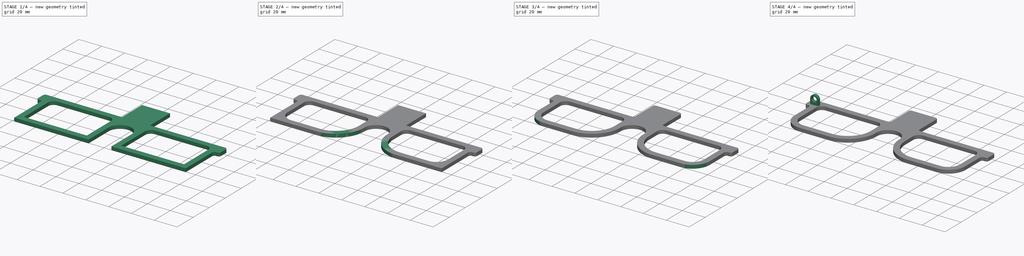
[diagram: build sequence overview — one tinted view per stage of 4, left to right]
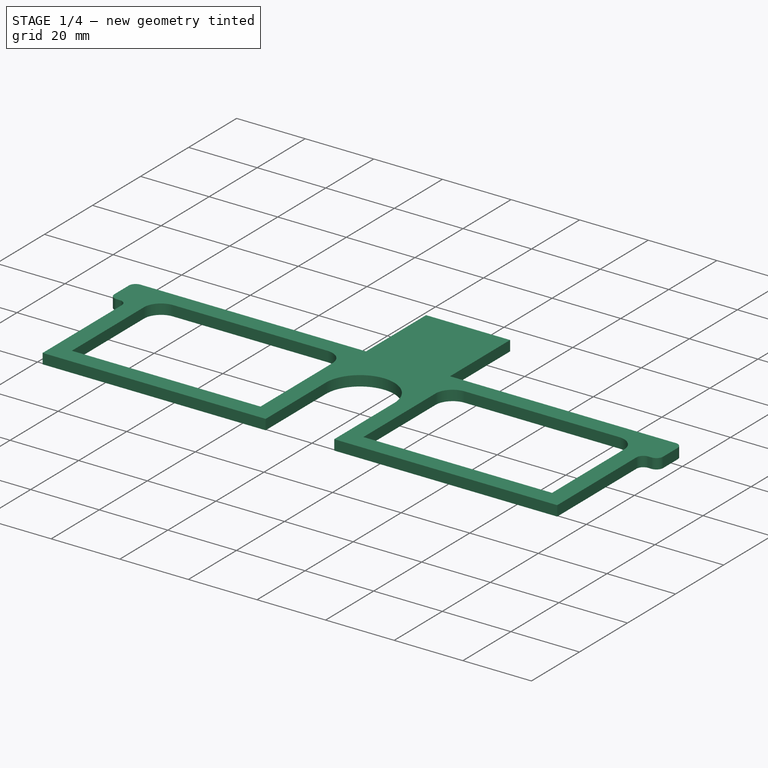
[diagram: stage 1 of 4 — iso view after this stage's code; geometry added in this stage tinted green]
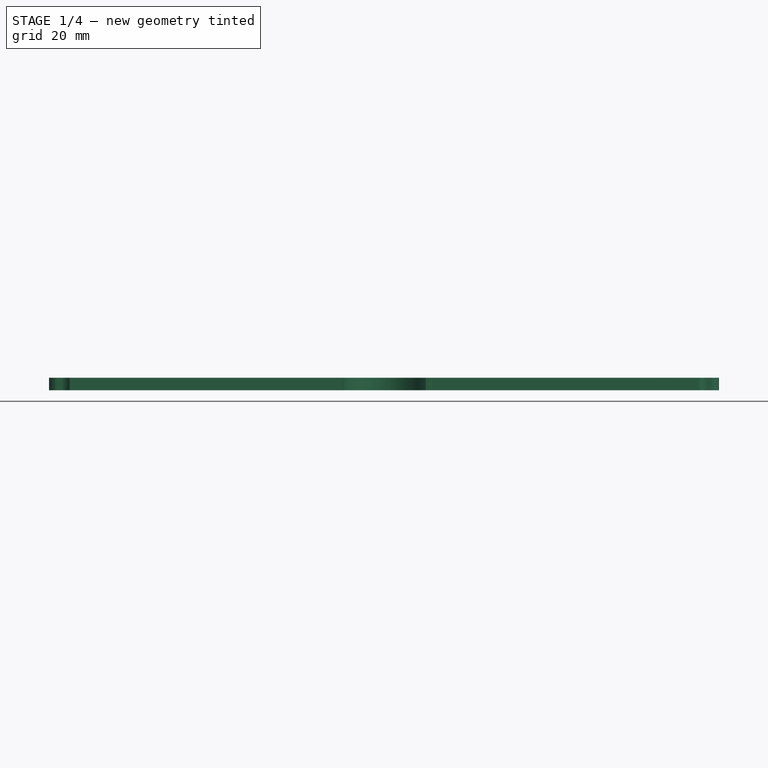
[diagram: stage 1 of 4 — front view after this stage's code; geometry added in this stage tinted green]
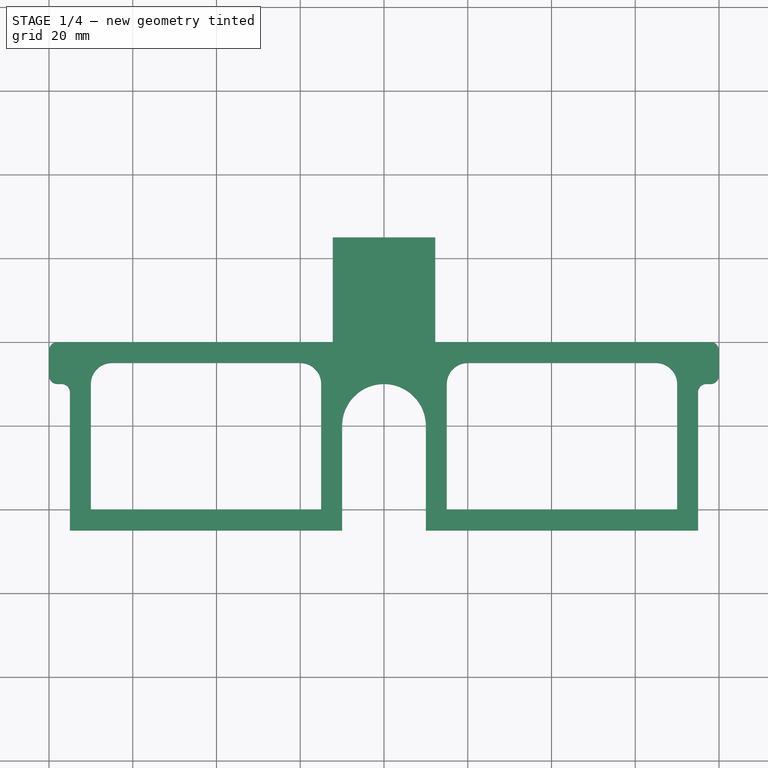
[diagram: stage 1 of 4 — top view after this stage's code; geometry added in this stage tinted green]
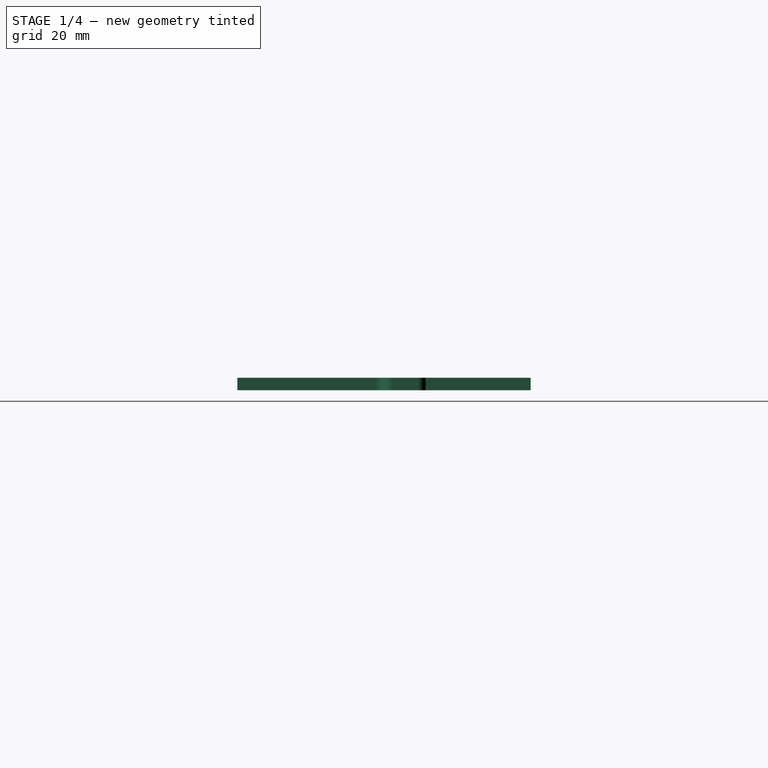
[diagram: stage 1 of 4 — right view after this stage's code; geometry added in this stage tinted green]
FCSTD DOCUMENT  (FreeCAD 0.19R)
Label: base
License: All rights reserved
LicenseURL: http://en.wikipedia.org/wiki/All_rights_reserved
objects: PartDesign::Fillet×8, Sketcher::SketchObject×3, PartDesign::Pad×2, PartDesign::Pocket×1, PartDesign::Body×1
note: 26 computed .brp shape members not serialized (recipe doc carries the construction recipe); baked Part::Feature solids carry a one-line shape summary decoded from their .brp

FEATURE [Sketcher::SketchObject] Sketch
  FullyConstrained = false
  MapMode = 5
  Support = -> [XY_Plane]
  sketch-geometry (30):
    g0: GeomPoint X=0 Y=2.4e-15 Z=0
    g1: ArcOfCircle CenterX=0 CenterY=2.4e-15 CenterZ=0 NormalX=0 NormalY=0 NormalZ=1 AngleXU=0 Radius=10 StartAngle=0 EndAngle=3.14159
    g2: LineSegment StartX=-75 StartY=20 StartZ=0 EndX=-12.25 EndY=20 EndZ=0
    g3: LineSegment StartX=12.25 StartY=20 StartZ=0 EndX=75 EndY=20 EndZ=0
    g4: LineSegment StartX=-12.25 StartY=20 StartZ=0 EndX=-12.25 EndY=45 EndZ=0
    g5: LineSegment StartX=12.25 StartY=20 StartZ=0 EndX=12.25 EndY=45 EndZ=0
    g6: LineSegment StartX=-12.25 StartY=45 StartZ=0 EndX=12.25 EndY=45 EndZ=0
    g7: GeomPoint X=-52.4596 Y=45 Z=0
    g8: GeomPoint X=-10 Y=-25 Z=0
    g9: LineSegment StartX=-70 StartY=15 StartZ=0 EndX=-15 EndY=15 EndZ=0
    g10: LineSegment StartX=-75 StartY=-25 StartZ=0 EndX=-10 EndY=-25 EndZ=0
    g11: LineSegment StartX=10 StartY=-25 StartZ=0 EndX=75 EndY=-25 EndZ=0
    g12: LineSegment StartX=-10 StartY=2.4e-15 StartZ=0 EndX=-10 EndY=-25 EndZ=0
    g13: LineSegment StartX=10 StartY=2.4e-15 StartZ=0 EndX=10 EndY=-25 EndZ=0
    g14: LineSegment StartX=-70 StartY=15 StartZ=0 EndX=-70 EndY=-20 EndZ=0
    g15: LineSegment StartX=-70 StartY=-20 StartZ=0 EndX=-15 EndY=-20 EndZ=0
    g16: LineSegment StartX=-15 StartY=-20 StartZ=0 EndX=-15 EndY=15 EndZ=0
    g17: LineSegment StartX=15 StartY=15 StartZ=0 EndX=70 EndY=15 EndZ=0
    g18: LineSegment StartX=70 StartY=15 StartZ=0 EndX=70 EndY=-20 EndZ=0
    g19: LineSegment StartX=70 StartY=-20 StartZ=0 EndX=15 EndY=-20 EndZ=0
    g20: LineSegment StartX=15 StartY=-20 StartZ=0 EndX=15 EndY=15 EndZ=0
    g21: LineSegment StartX=-75.0012 StartY=20 StartZ=0 EndX=-75 EndY=20 EndZ=0
    g22: LineSegment StartX=-75 StartY=-25 StartZ=0 EndX=-75 EndY=10 EndZ=0
    g23: LineSegment StartX=-75 StartY=10 StartZ=0 EndX=-80 EndY=10 EndZ=0
    g24: LineSegment StartX=-80 StartY=10 StartZ=0 EndX=-80 EndY=20 EndZ=0
    g25: LineSegment StartX=-80 StartY=20 StartZ=0 EndX=-75 EndY=20 EndZ=0
    g26: LineSegment StartX=75 StartY=-25 StartZ=0 EndX=75 EndY=10 EndZ=0
    g27: LineSegment StartX=80 StartY=10 StartZ=0 EndX=75 EndY=10 EndZ=0
    g28: LineSegment StartX=75 StartY=20 StartZ=0 EndX=80 EndY=20 EndZ=0
    g29: LineSegment StartX=80 StartY=10 StartZ=0 EndX=80 EndY=20 EndZ=0
  constraints (83):
    c: Coincident(g1,g0)
    c: Horizontal(g2)
    c: Horizontal(g3)
    c: Equal(g2,g3) = 55
    c: Vertical(g4)
    c: Coincident(g2,g4)
    c: DistanceY(g4,g4) = 25
    c: Vertical(g5)
    c: Equal(g4,g5) = 25
    c: Coincident(g3,g5)
    c: Coincident(g6,g4)
    c: Coincident(g6,g5)
    c: DistanceX(g6,g6) = 24.5
    c: PointOnObject(g7,g6)
    c: Coincident(g1,g-1)
    c: Horizontal(g9)
    c: Horizontal(g10)
    c: Horizontal(g6)
    c: Radius(g1) = 10
    c: Horizontal(g1,g1)
    c: Horizontal(g1,g1)
    c: Horizontal(g11)
    c: Equal(g10,g11) = 40
    c: Coincident(g12,g1)
    c: Vertical(g12)
    c: DistanceY(g12,g12) = 25
    c: Coincident(g8,g12)
    c: Vertical(g13)
    c: Coincident(g1,g13)
    c: Coincident(g11,g13)
    c: Coincident(g14,g9)
    c: Vertical(g14)
    c: Coincident(g15,g14)
    c: Horizontal(g15)
    c: Coincident(g16,g15)
    c: Coincident(g16,g9)
    c: Vertical(g16)
    c: Coincident(g17,g18)
    c: Coincident(g18,g19)
    c: Coincident(g19,g20)
    c: Coincident(g20,g17)
    c: Horizontal(g17)
    c: Horizontal(g19)
    c: Vertical(g18)
    c: Vertical(g20)
    c: DistanceY(g17,g3) = 5
    c: DistanceX(g17,g3) = 5
    c: DistanceX(g11,g19) = 5
    c: DistanceY(g11,g19) = 5
    c: DistanceX(g15,g10) = 5
    c: DistanceY(g10,g15) = 5
    c: Coincident(g8,g10)
    c: Horizontal(g21)
    c: Coincident(g2,g21)
    c: DistanceX(g10,g10) = 65
    c: Coincident(g22,g10)
    c: Vertical(g22)
    c: Coincident(g23,g22)
    c: Horizontal(g23)
    c: Coincident(g24,g23)
    c: Vertical(g24)
    c: Coincident(g25,g24)
    c: Coincident(g25,g2)
    c: Horizontal(g25)
    c: DistanceY(g24,g24) = 10
    c: DistanceX(g23,g23) = 5
    c: DistanceY(g9,g2) = 5
    c: DistanceX(g2,g9) = 5
    c: DistanceX(g10,g14) = 5
    c: DistanceY(g10,g2) = 45
    c: Equal(g19,g15)
    c: Equal(g12,g13)
    c: Vertical(g26)
    c: Horizontal(g27)
    c: Horizontal(g28)
    c: Equal(g23,g27) = 5
    c: Vertical(g29)
    c: Equal(g24,g29) = 10
    c: Coincident(g28,g29)
    c: Coincident(g27,g29)
    c: Coincident(g26,g27)
    c: Coincident(g3,g28)
    c: Coincident(g11,g26)
FEATURE [PartDesign::Pad] Pad
  Direction = (1,1,1)
  Length = 3
  Length2 = 100
  Profile = -> Sketch
  Type = 0
FEATURE [PartDesign::Fillet] Fillet
  Base = -> Pad [Edge13,Edge17,Edge47,Edge44,Edge20,Edge41]
  BaseFeature = -> Pad
  Radius = 2
  SupportTransform = false
FEATURE [PartDesign::Fillet] Fillet001
  Base = -> Fillet [Edge93,Edge89,Edge94,Edge90]
  BaseFeature = -> Fillet
  Radius = 5
  SupportTransform = false
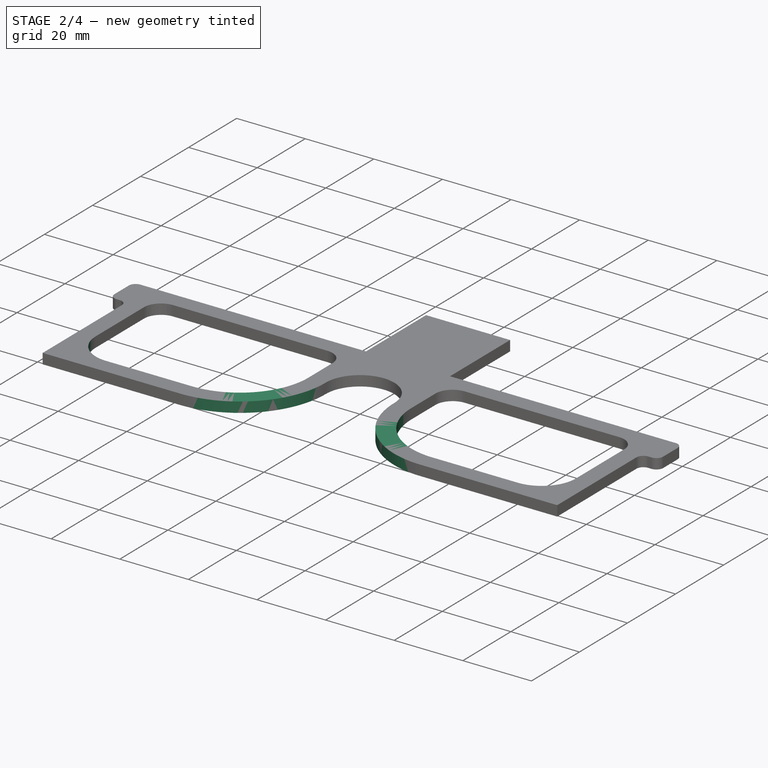
[diagram: stage 2 of 4 — iso view after this stage's code; geometry added in this stage tinted green]
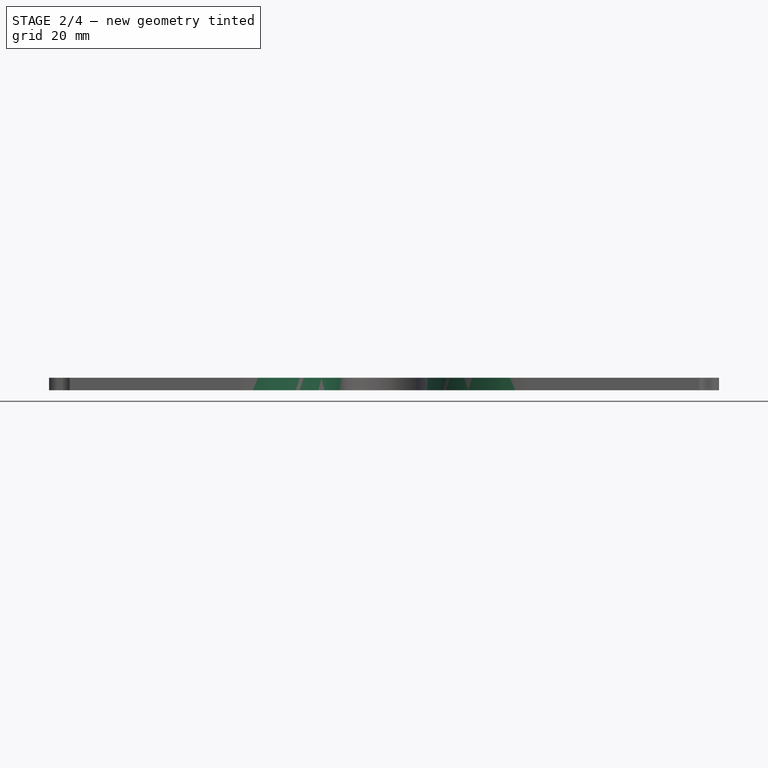
[diagram: stage 2 of 4 — front view after this stage's code; geometry added in this stage tinted green]
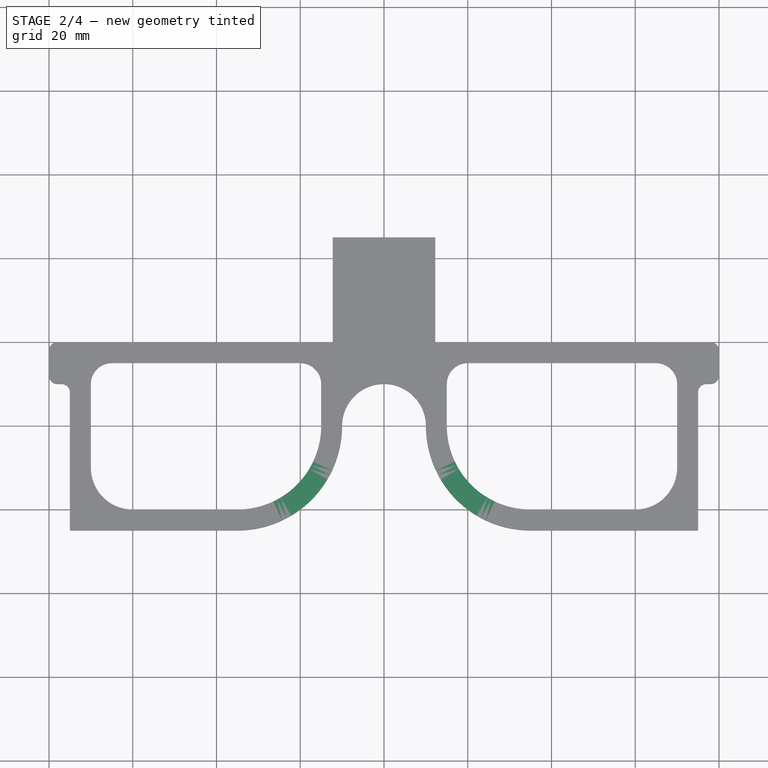
[diagram: stage 2 of 4 — top view after this stage's code; geometry added in this stage tinted green]
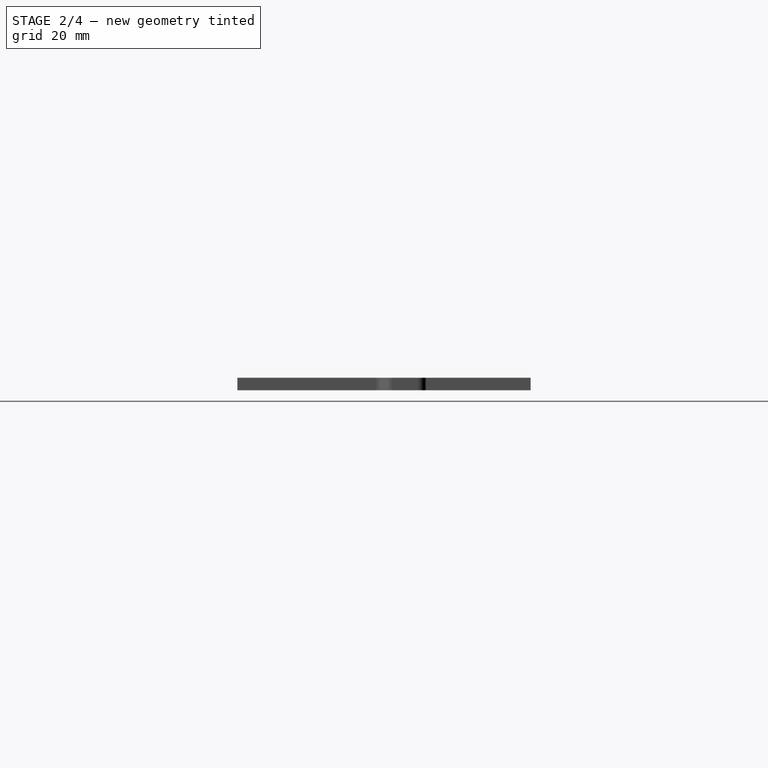
[diagram: stage 2 of 4 — right view after this stage's code; geometry added in this stage tinted green]
FEATURE [PartDesign::Fillet] Fillet002
  Base = -> Fillet001 [Edge106,Edge44]
  BaseFeature = -> Fillet001
  Radius = 20
  SupportTransform = false
FEATURE [PartDesign::Fillet] Fillet003
  Base = -> Fillet002 [Edge80,Edge92]
  BaseFeature = -> Fillet002
  Radius = 24.99
  SupportTransform = false
FEATURE [PartDesign::Fillet] Fillet004
  Base = -> Fillet003 [Edge114,Edge100]
  BaseFeature = -> Fillet003
  Radius = 10
  SupportTransform = false
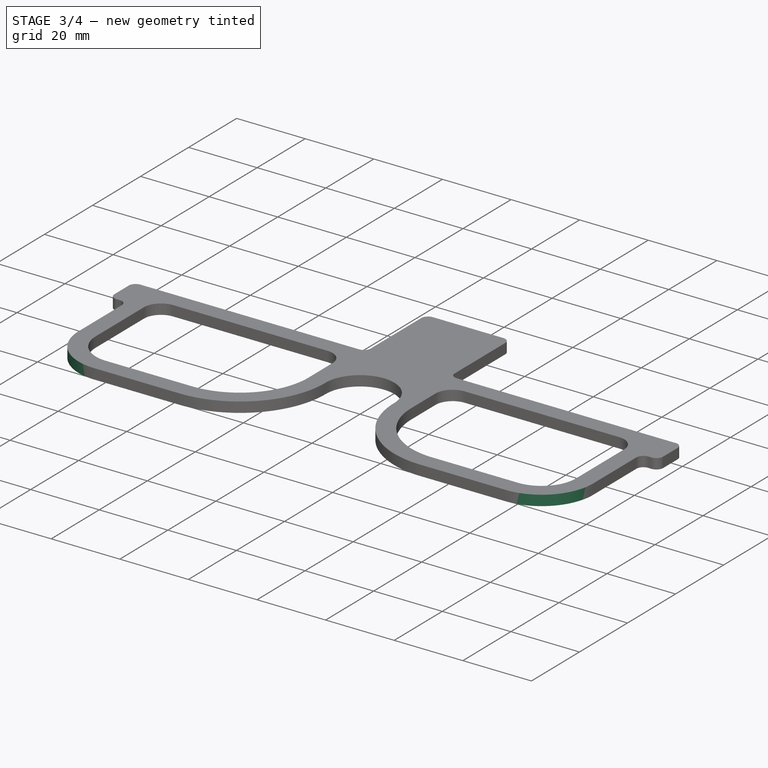
[diagram: stage 3 of 4 — iso view after this stage's code; geometry added in this stage tinted green]
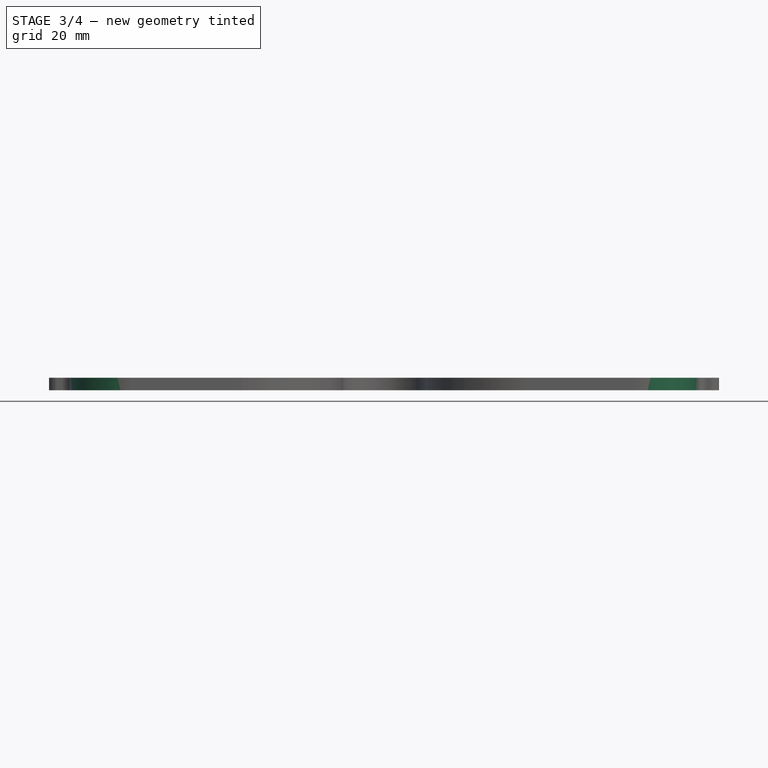
[diagram: stage 3 of 4 — front view after this stage's code; geometry added in this stage tinted green]
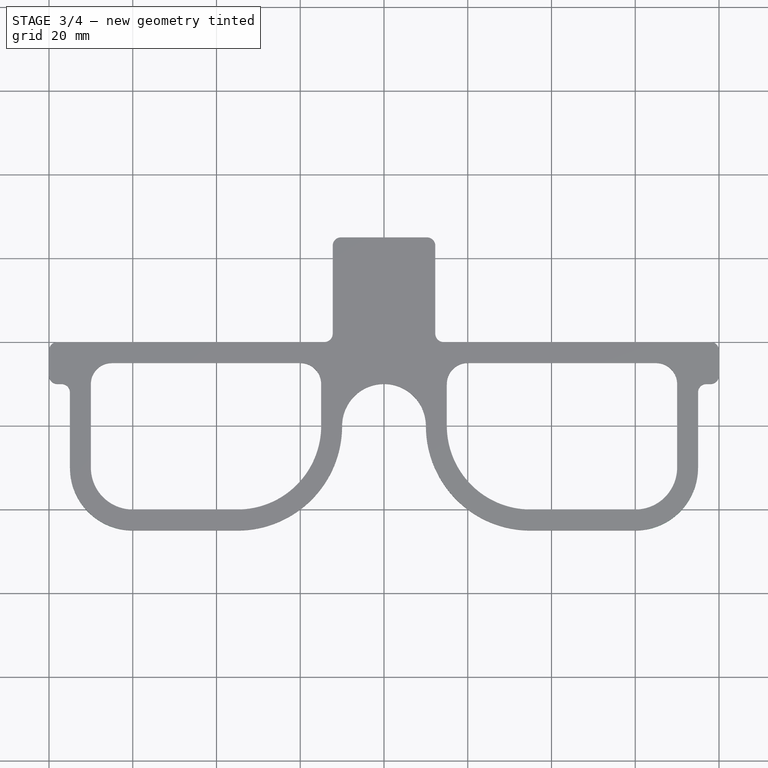
[diagram: stage 3 of 4 — top view after this stage's code; geometry added in this stage tinted green]
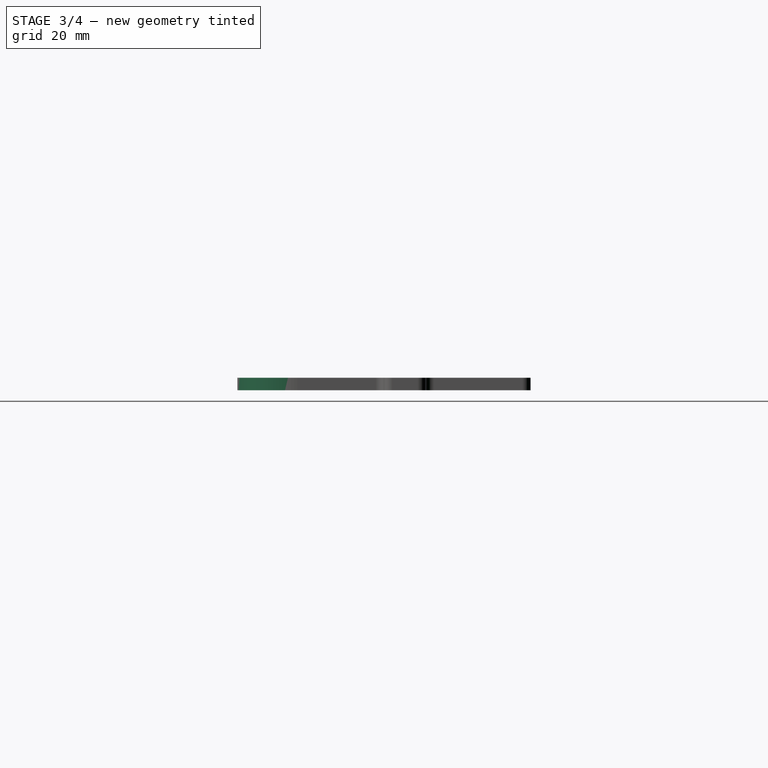
[diagram: stage 3 of 4 — right view after this stage's code; geometry added in this stage tinted green]
FEATURE [PartDesign::Fillet] Fillet005
  Base = -> Fillet004 [Edge82,Edge60]
  BaseFeature = -> Fillet004
  Radius = 15
  SupportTransform = false
FEATURE [PartDesign::Fillet] Fillet006
  Base = -> Fillet005 [Edge92,Edge80,Edge84,Edge88]
  BaseFeature = -> Fillet005
  Radius = 2
  SupportTransform = false
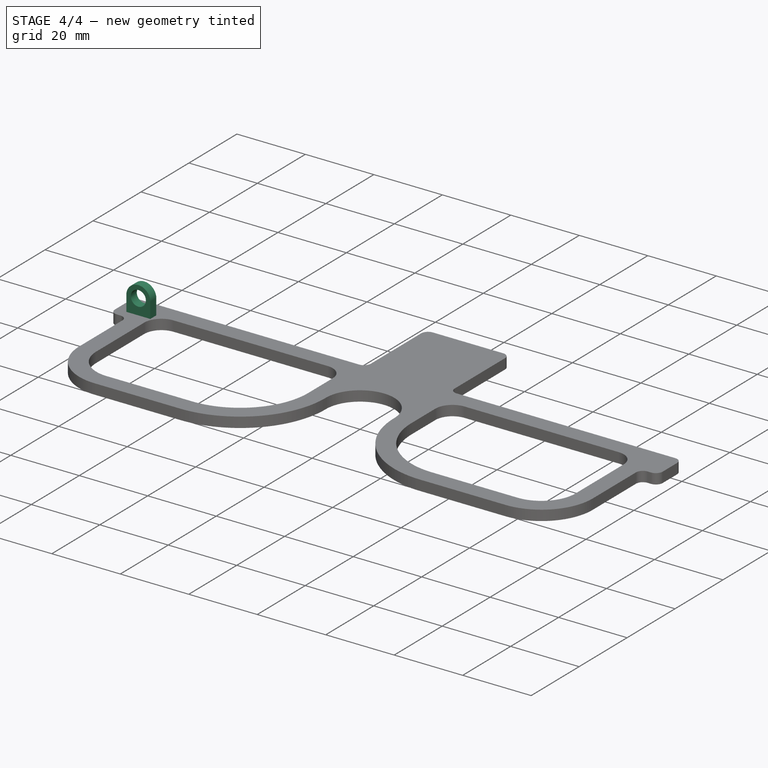
[diagram: stage 4 of 4 — iso view after this stage's code; geometry added in this stage tinted green]
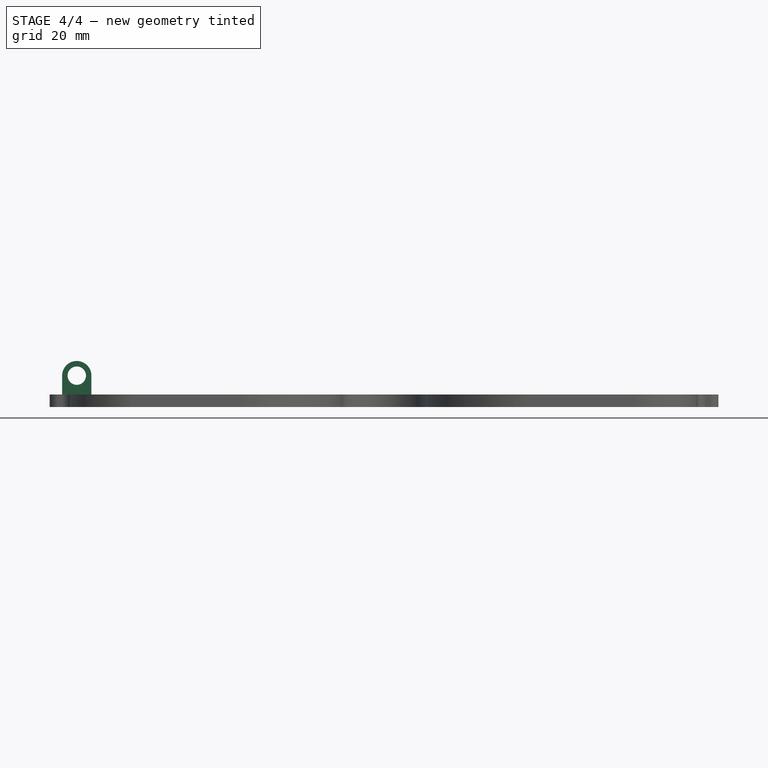
[diagram: stage 4 of 4 — front view after this stage's code; geometry added in this stage tinted green]
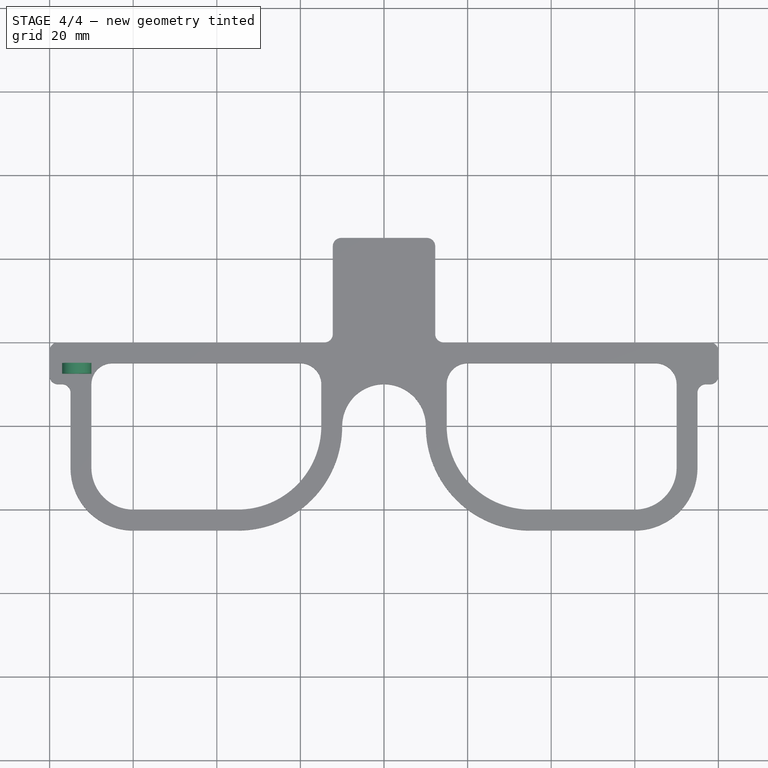
[diagram: stage 4 of 4 — top view after this stage's code; geometry added in this stage tinted green]
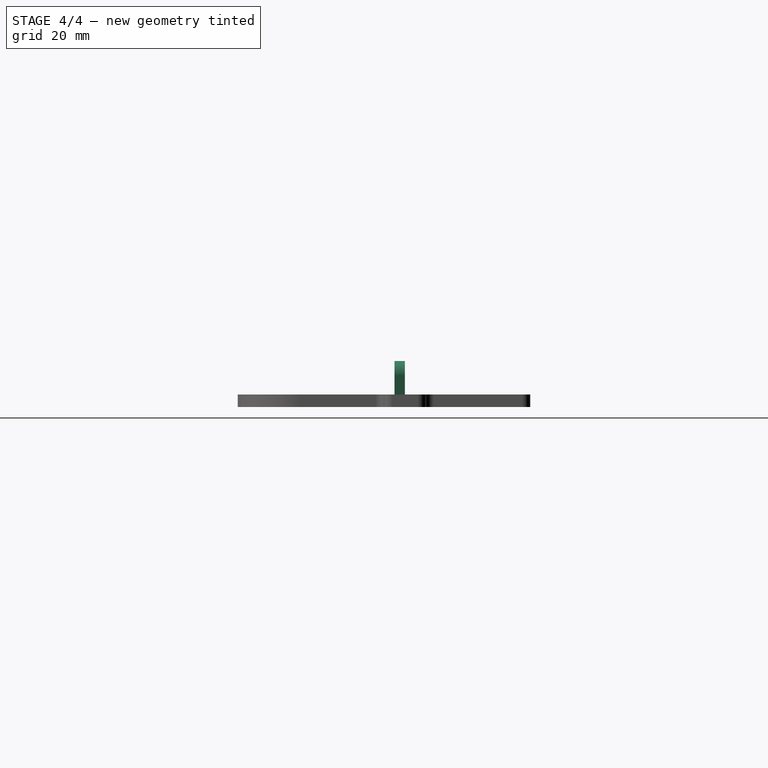
[diagram: stage 4 of 4 — right view after this stage's code; geometry added in this stage tinted green]
FEATURE [Sketcher::SketchObject] Sketch002
  ExternalGeometry = -> [Fillet006]
  FullyConstrained = true
  MapMode = 5
  Placement = pos=(0,0,3) rot=(0,0,1;0rad)
  Support = -> [Fillet006]
  sketch-geometry (5):
    g0: GeomPoint X=-77.0012 Y=20 Z=0
    g1: LineSegment StartX=-77.0012 StartY=15 StartZ=0 EndX=-70.0012 EndY=15 EndZ=0
    g2: LineSegment StartX=-70.0012 StartY=15 StartZ=0 EndX=-70.0012 EndY=12.5 EndZ=0
    g3: LineSegment StartX=-70.0012 StartY=12.5 StartZ=0 EndX=-77.0012 EndY=12.5 EndZ=0
    g4: LineSegment StartX=-77.0012 StartY=12.5 StartZ=0 EndX=-77.0012 EndY=15 EndZ=0
  constraints (14):
    c: DistanceX(g0,g-3) = 2
    c: Horizontal(g0,g-3)
    c: Coincident(g1,g2)
    c: Coincident(g2,g3)
    c: Coincident(g3,g4)
    c: Coincident(g4,g1)
    c: Horizontal(g1)
    c: Horizontal(g3)
    c: Vertical(g2)
    c: Vertical(g4)
    c: DistanceY(g4,g4) = 2.5
    c: Vertical(g0,g1)
    c: DistanceX(g1,g1) = 7
    c: DistanceY(g1,g0) = 5
FEATURE [PartDesign::Pad] Pad001
  BaseFeature = -> Fillet006
  Direction = (1,1,1)
  Length = 8
  Length2 = 100
  Profile = -> Sketch002
  Type = 0
FEATURE [Sketcher::SketchObject] Sketch003
  ExternalGeometry = -> [Pad001]
  FullyConstrained = true
  MapMode = 5
  Placement = pos=(0,15,0) rot=(0,0.707107,0.707107;3.14159rad)
  Support = -> [Pad001]
  sketch-geometry (1):
    g0: Circle CenterX=73.5012 CenterY=7.5 CenterZ=0 NormalX=0 NormalY=0 NormalZ=1 AngleXU=0 Radius=2.2
  constraints (3):
    c: Diameter(g0) = 4.4
    c: DistanceX(g-3,g0) = 3.5
    c: DistanceY(g0,g-3) = 3.5
FEATURE [PartDesign::Pocket] Pocket
  BaseFeature = -> Pad001
  Length = 2.5
  Length2 = 100
  Profile = -> Sketch003
  Type = 0
FEATURE [PartDesign::Fillet] Fillet007
  Base = -> Pocket [Edge151,Edge156]
  BaseFeature = -> Pocket
  Radius = 3.49
  SupportTransform = false
FEATURE [PartDesign::Body] Body
  Group = -> [Sketch,Pad,Fillet,Fillet001,Fillet002,Fillet003,Fillet004,Fillet005,Fillet006,Sketch002,Pad001,Sketch003,Pocket,Fillet007]
  Origin = -> Origin
  Tip = -> Fillet007
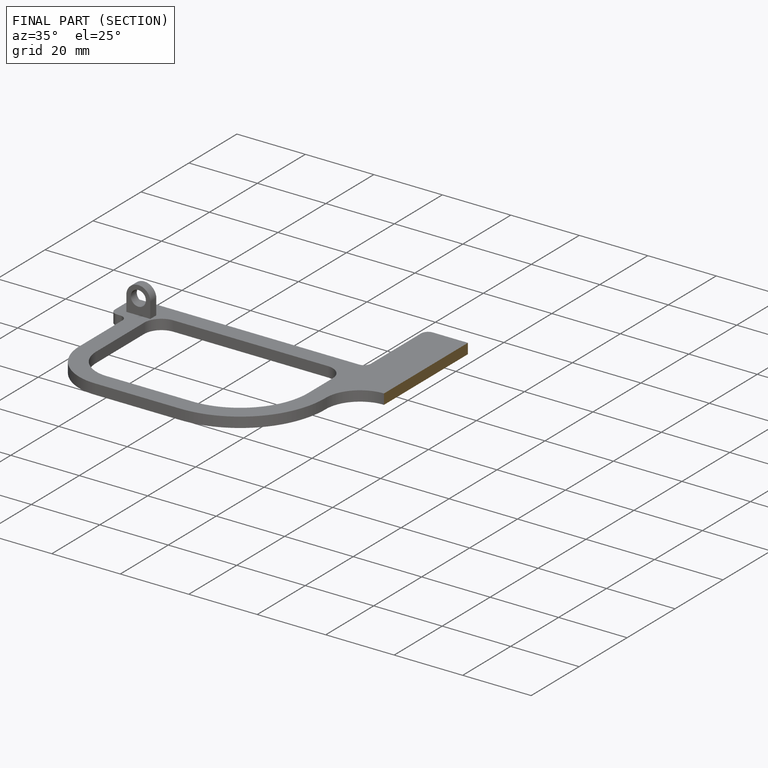
[diagram: finished part — half-section view (interior)]
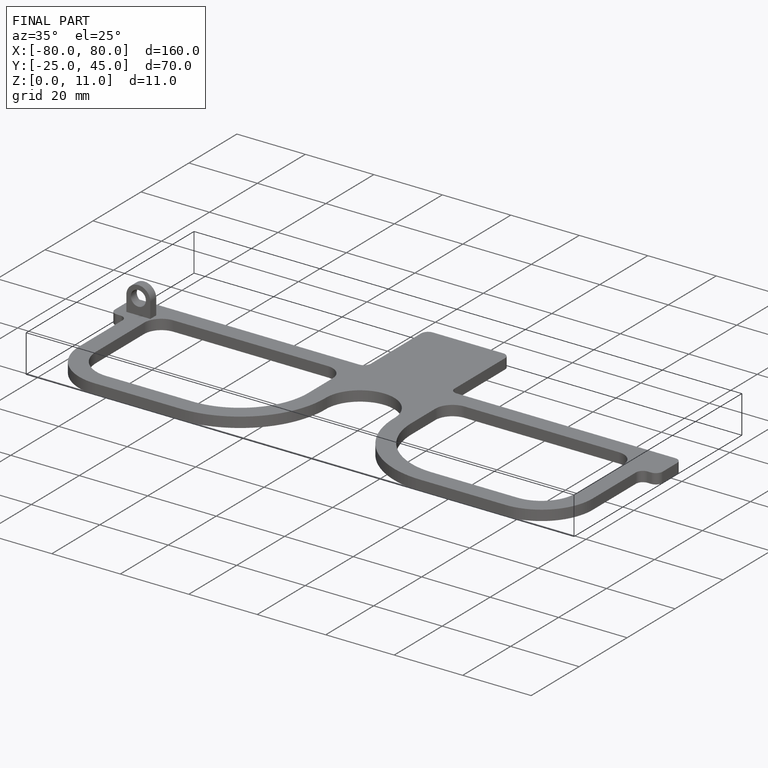
[diagram: finished part — iso view with bounding-box wireframe]
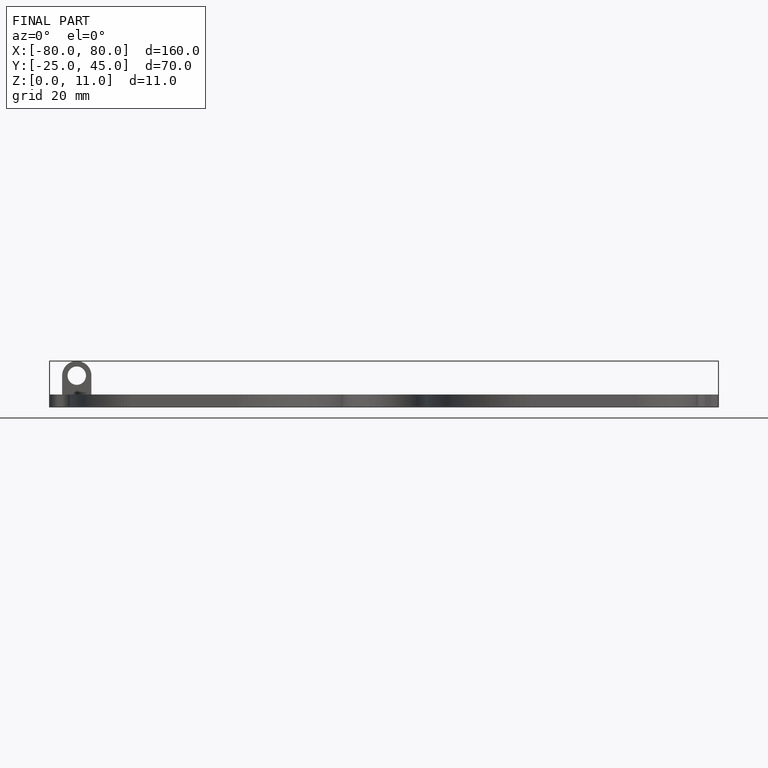
[diagram: finished part — front view with bounding-box wireframe]
